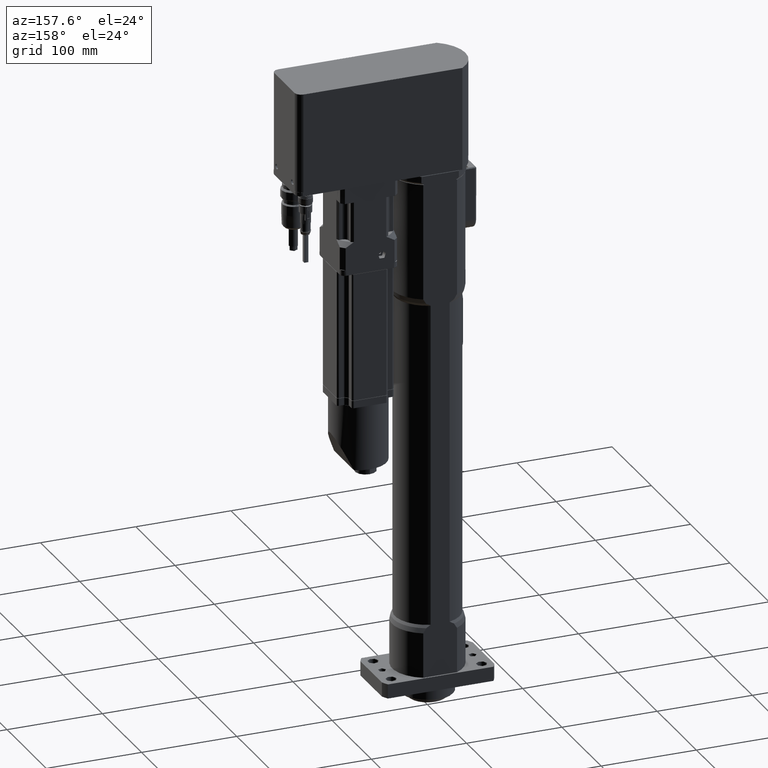
[diagram: clean part render]
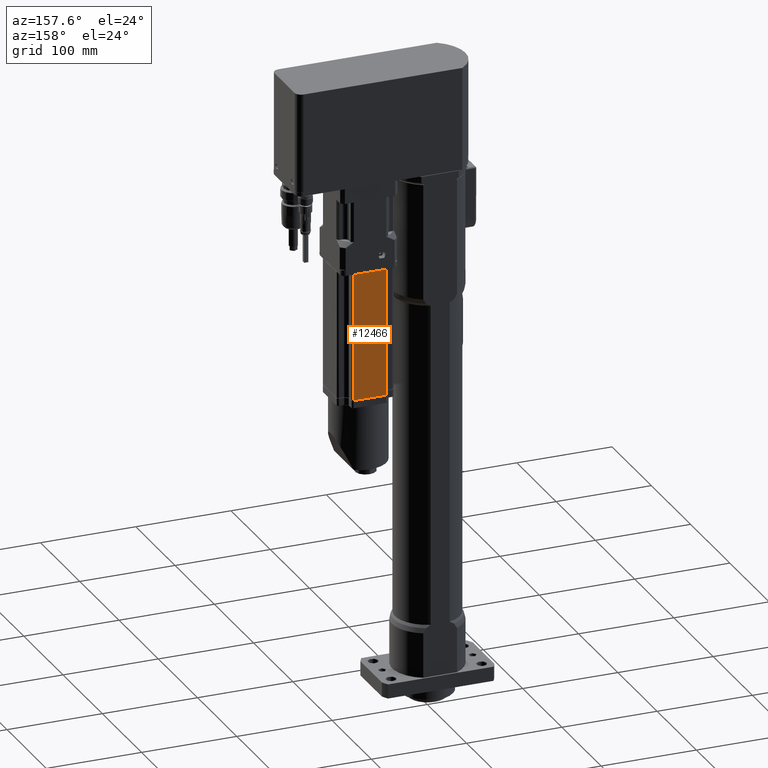
[diagram: same view with one face highlighted and labeled with its STEP entity id]
A machine part, auxiliary view. The second image highlights one B-rep face of the part: STEP entity #12466.
In plain terms, the highlighted planar face has unit normal (0, 1, -0).
Its self-contained STEP definition (entity closure, byte-faithful):
#685=LINE('',#22429,#1621);
#722=LINE('',#22549,#1658);
#731=LINE('',#22576,#1667);
#732=LINE('',#22579,#1668);
#1621=VECTOR('',#16219,34.);
#1658=VECTOR('',#16354,34.);
#1667=VECTOR('',#16387,133.8);
#1668=VECTOR('',#16392,133.8);
#2469=PLANE('',#13673);
#3249=FACE_OUTER_BOUND('',#4101,.T.);
#4101=EDGE_LOOP('',(#9895,#9896,#9897,#9898));
#5790=VERTEX_POINT('',#22423);
#5791=VERTEX_POINT('',#22427);
#5824=VERTEX_POINT('',#22546);
#5825=VERTEX_POINT('',#22548);
#7227=EDGE_CURVE('',#5790,#5791,#685,.T.);
#7286=EDGE_CURVE('',#5824,#5825,#722,.T.);
#7300=EDGE_CURVE('',#5824,#5791,#731,.T.);
#7302=EDGE_CURVE('',#5825,#5790,#732,.T.);
#9895=ORIENTED_EDGE('',*,*,#7227,.F.);
#9896=ORIENTED_EDGE('',*,*,#7302,.F.);
#9897=ORIENTED_EDGE('',*,*,#7286,.F.);
#9898=ORIENTED_EDGE('',*,*,#7300,.T.);
#12466=ADVANCED_FACE('',(#3249),#2469,.T.);
#13673=AXIS2_PLACEMENT_3D('',#22578,#16390,#16391);
#16219=DIRECTION('',(-1.,-4.15017143758144E-16,9.5486277816282E-16));
#16354=DIRECTION('',(1.,4.15017143758144E-16,-9.5486277816282E-16));
#16387=DIRECTION('',(-9.5486277816282E-16,-1.12787535060299E-31,-1.));
#16390=DIRECTION('center_axis',(4.15017143758145E-16,-1.,-2.83496887813802E-31));
#16391=DIRECTION('ref_axis',(-1.,0.,0.));
#16392=DIRECTION('',(-9.5486277816282E-16,-1.12787535060299E-31,-1.));
#22423=CARTESIAN_POINT('',(-55.4999999999997,-29.9999999999999,234.700000000001));
#22427=CARTESIAN_POINT('',(-89.4999999999998,-29.9999999999999,234.700000000001));
#22429=CARTESIAN_POINT('',(-63.9999999999997,-29.9999999999999,234.700000000001));
#22546=CARTESIAN_POINT('',(-89.4999999999996,-29.9999999999999,368.500000000001));
#22548=CARTESIAN_POINT('',(-55.4999999999996,-29.9999999999999,368.500000000001));
#22549=CARTESIAN_POINT('',(-89.4999999999996,-29.9999999999999,368.500000000001));
#22576=CARTESIAN_POINT('',(-89.4999999999996,-29.9999999999999,368.500000000001));
#22578=CARTESIAN_POINT('Origin',(-55.4999999999996,-29.9999999999999,368.500000000001));
#22579=CARTESIAN_POINT('',(-55.4999999999996,-29.9999999999999,368.500000000001));